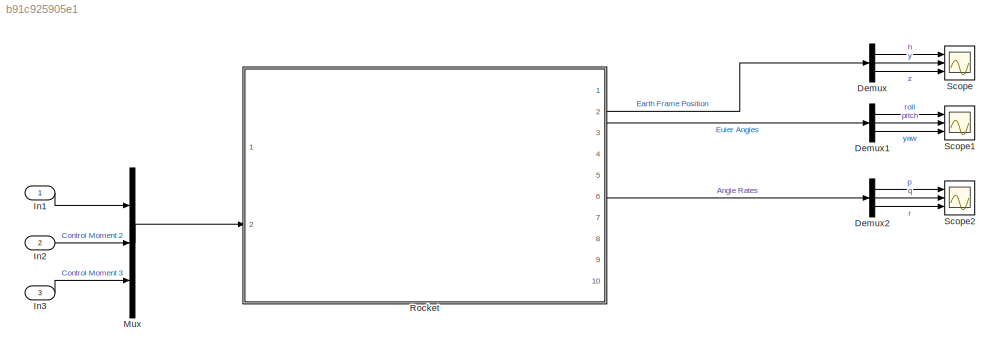
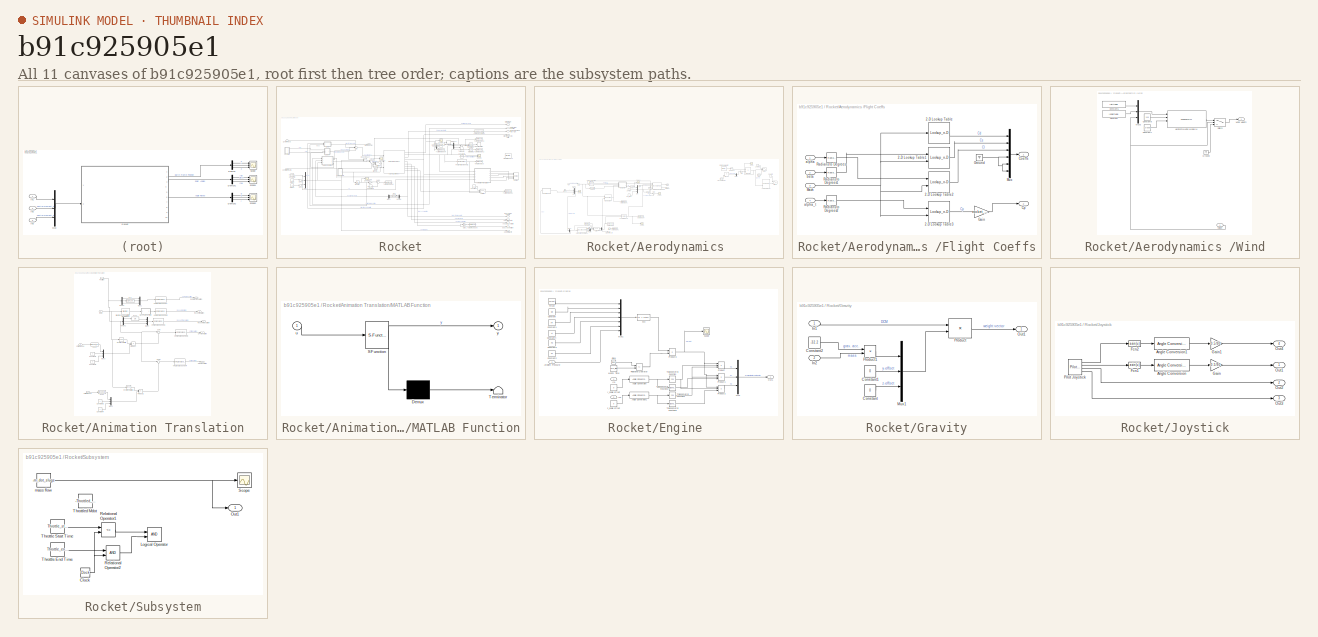
[diagram: thumbnail index - all 11 canvases of the model, root first then tree order]
MODEL slx_b91c925905e1
KIND model
CONFIG AbsTol = auto
CONFIG EnableMultiTasking = off
CONFIG FixedStep = 0.0001
CONFIG MaxStep = auto
CONFIG MinStep = auto
CONFIG RelTol = 1e-7
CONFIG SampleTimeConstraint = Unconstrained
CONFIG Solver = VariableStepAuto
CONFIG SolverName = VariableStepAuto
CONFIG StartTime = 0.0
CONFIG StopTime = 300
BLOCK [Demux] Demux
  DisplayOption = bar
  Outputs = 3
  Ports = [1, 3]
BLOCK [Demux] Demux1
  DisplayOption = bar
  Outputs = 3
  Ports = [1, 3]
BLOCK [Demux] Demux2
  DisplayOption = bar
  Outputs = 3
  Ports = [1, 3]
BLOCK [Inport] In1
  IconDisplay = Port number
BLOCK [Inport] In2
  IconDisplay = Port number
  Port = 2
BLOCK [Inport] In3
  IconDisplay = Port number
  Port = 3
BLOCK [Mux] Mux
  DisplayOption = bar
  Inputs = 3
  Ports = [3, 1]
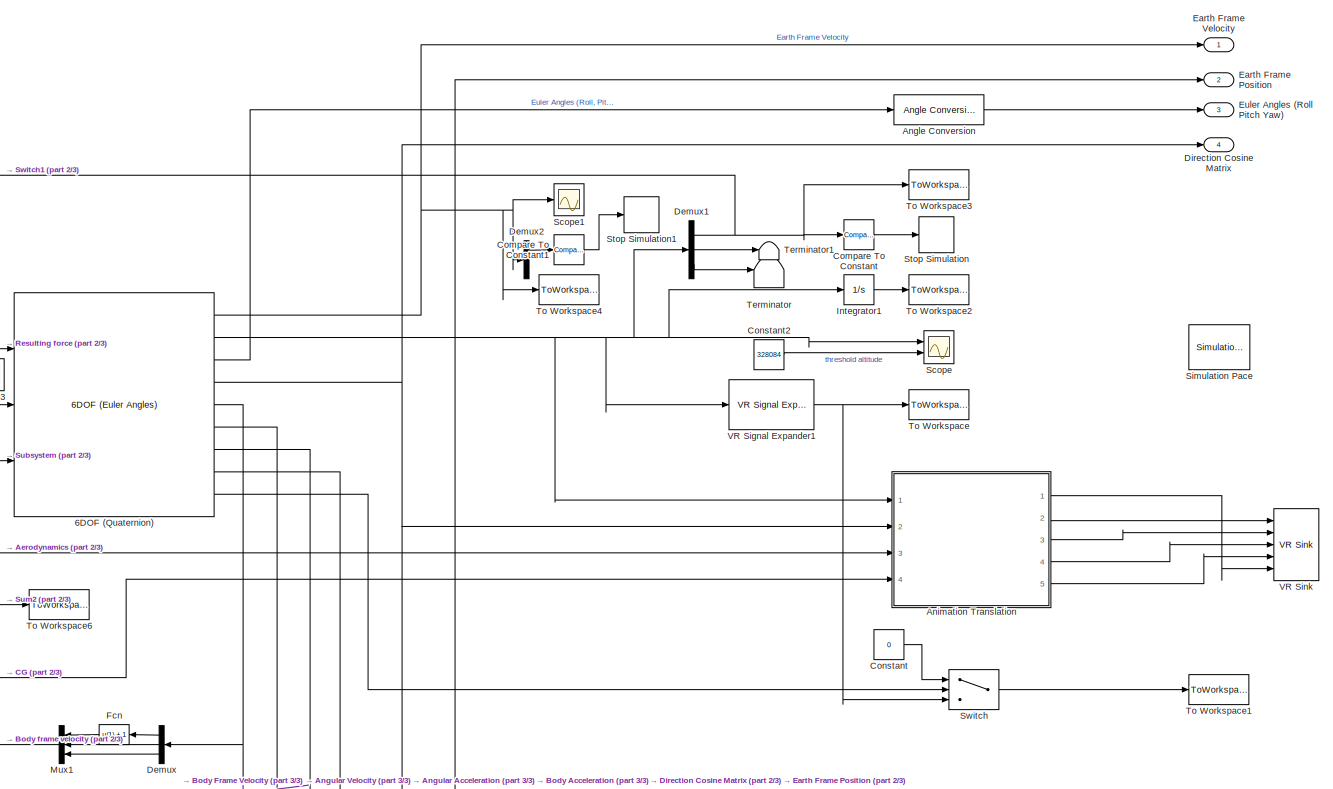
[diagram: Rocket - part 1/3, middle right region]
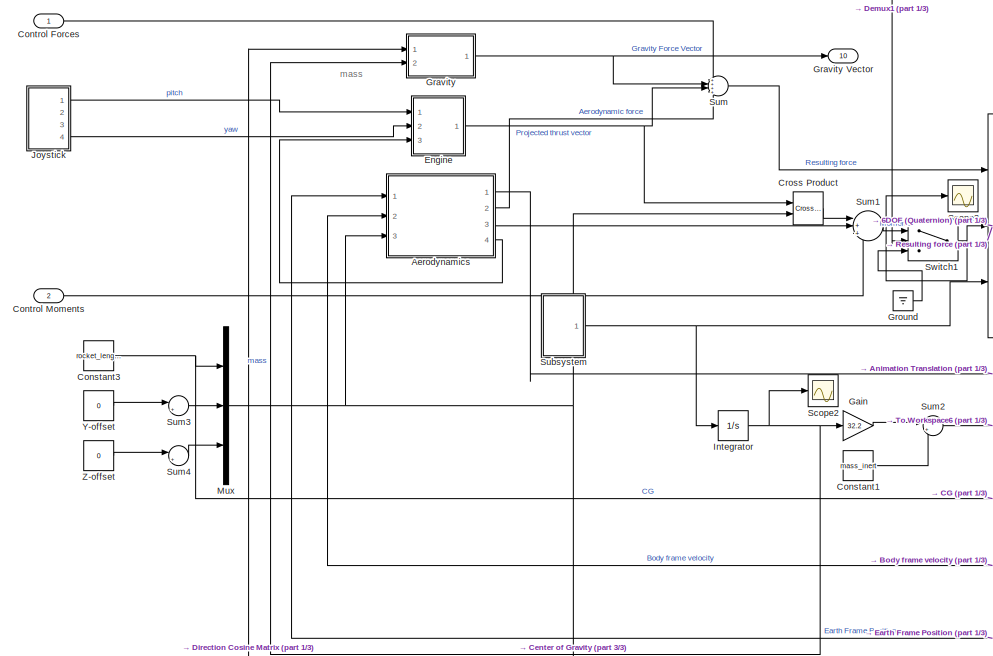
[diagram: Rocket - part 2/3, middle left region]
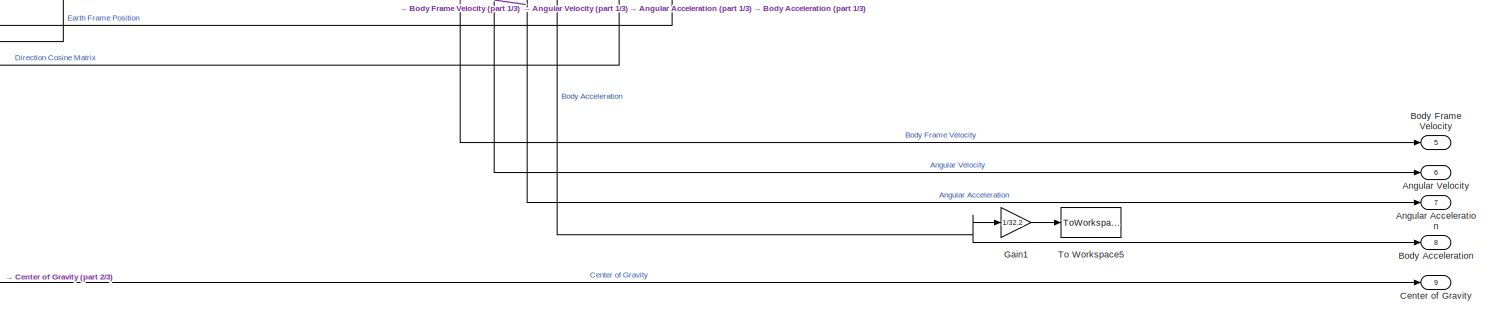
[diagram: Rocket - part 3/3, bottom center region]
BLOCK [SubSystem] Rocket
  Ports = [2, 10]
  RequestExecContextInheritance = off
BLOCK [Reference] Rocket/6DOF (Quaternion)  REF=shared6dof/6DOF (Euler Angles)
  Ports = [3, 9]
  SourceBlock = shared6dof/6DOF (Euler Angles)
  SourceProductBaseCode = AE
  SourceProductName = Aerospace Blockset
  SourceType = 6DOF EoM (Body Axis)
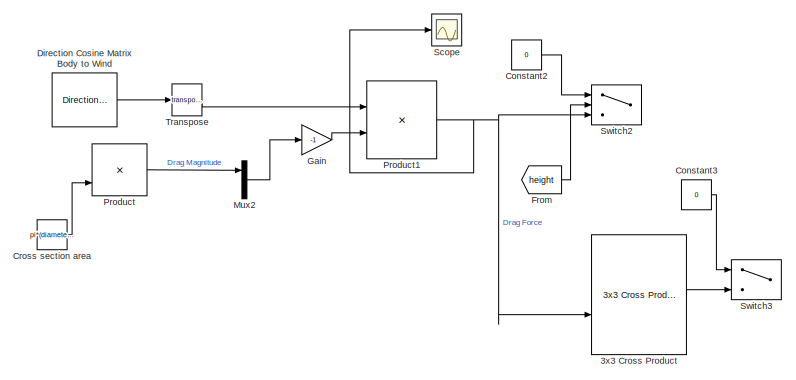
[diagram: Rocket/Aerodynamics  - part 1/3, top right region]
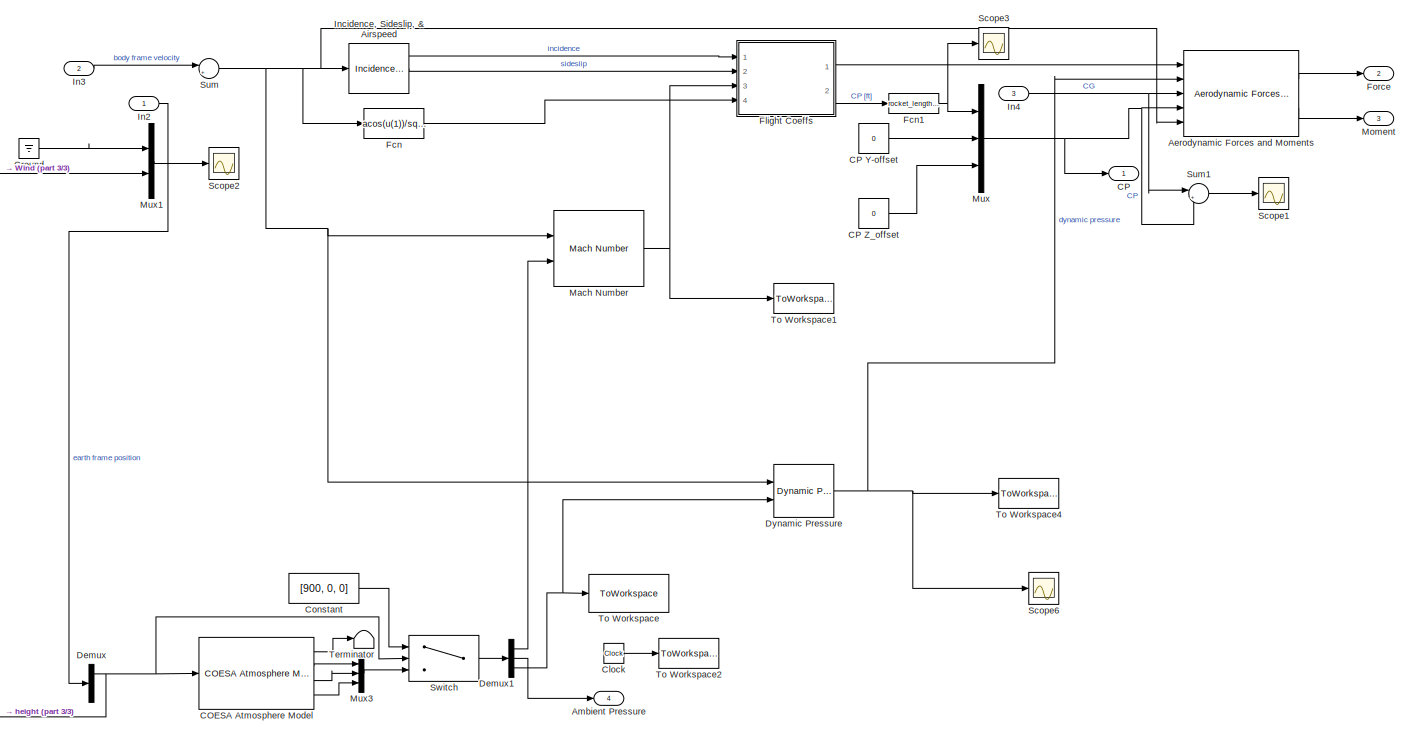
[diagram: Rocket/Aerodynamics  - part 2/3, left side, full height]
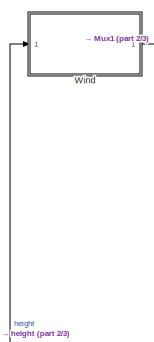
[diagram: Rocket/Aerodynamics  - part 3/3, middle left region]
BLOCK [SubSystem] Rocket/Aerodynamics 
  Ports = [3, 4]
  RequestExecContextInheritance = off
BLOCK [Reference] Rocket/Aerodynamics /3x3 Cross Product  REF=sharedutil/3x3 Cross Product
  Commented = on
  Ports = [2, 1]
  SourceBlock = sharedutil/3x3 Cross Product
  SourceProductBaseCode = AE
  SourceProductName = Aerospace Blockset
  SourceType = CrossProduct
BLOCK [Reference] Rocket/Aerodynamics /Aerodynamic Forces and Moments   REF=aerolibadyn/Aerodynamic
Forces and Moments 
  Ports = [5, 2]
  SourceBlock = aerolibadyn/Aerodynamic\nForces and Moments
  SourceProductBaseCode = AE
  SourceProductName = Aerospace Blockset
  SourceType = Aerodynamic Forces and Moments
BLOCK [Outport] Rocket/Aerodynamics /Ambient Pressure
  IconDisplay = Port number
  Port = 4
BLOCK [Reference] Rocket/Aerodynamics /COESA Atmosphere Model  REF=aerolibatmos2/COESA Atmosphere Model
  Ports = [1, 4]
  SourceBlock = aerolibatmos2/COESA Atmosphere Model
  SourceProductBaseCode = AE
  SourceProductName = Aerospace Blockset
  SourceType = Atmosphere Model
BLOCK [Outport] Rocket/Aerodynamics /CP
  IconDisplay = Port number
BLOCK [Constant] Rocket/Aerodynamics /CP Y-offset 
  Value = 0
BLOCK [Constant] Rocket/Aerodynamics /CP Z_offset 
  Value = 0
BLOCK [Clock] Rocket/Aerodynamics /Clock
BLOCK [Constant] Rocket/Aerodynamics /Constant
  Value = [900, 0, 0]
BLOCK [Constant] Rocket/Aerodynamics /Constant2
  Commented = on
  Value = 0
BLOCK [Constant] Rocket/Aerodynamics /Constant3
  Commented = on
  Value = 0
BLOCK [Constant] Rocket/Aerodynamics /Cross section area
  Commented = on
  Value = pi*(diameter_ft/2)^2
  VectorParams1D = off
BLOCK [Demux] Rocket/Aerodynamics /Demux
  DisplayOption = bar
  Outputs = 3
  Ports = [1, 3]
BLOCK [Demux] Rocket/Aerodynamics /Demux1
  DisplayOption = bar
  Outputs = 3
  Ports = [1, 3]
BLOCK [Reference] Rocket/Aerodynamics /Direction Cosine Matrix Body to Wind  REF=aerolibtransform2/Direction Cosine Matrix
Body to Wind
  Commented = on
  Ports = [1, 1]
  SourceBlock = aerolibtransform2/Direction Cosine Matrix\nBody to Wind
  SourceProductBaseCode = AE
  SourceProductName = Aerospace Blockset
  SourceType = DCM Body to Wind
BLOCK [Reference] Rocket/Aerodynamics /Dynamic Pressure  REF=aerolibasang/Dynamic Pressure
  Ports = [2, 1]
  SourceBlock = aerolibasang/Dynamic Pressure
  SourceProductBaseCode = AE
  SourceProductName = Aerospace Blockset
  SourceType = Dynamic Pressure
BLOCK [Fcn] Rocket/Aerodynamics /Fcn
  Expr = acos(u(1))/sqrt(u(1)^2 + u(2)^2 + u(3)^2)
BLOCK [Fcn] Rocket/Aerodynamics /Fcn1
  Expr = rocket_length - u
BLOCK [SubSystem] Rocket/Aerodynamics /Flight Coeffs
  Ports = [4, 2]
  RequestExecContextInheritance = off
BLOCK [Lookup_n-D] Rocket/Aerodynamics /Flight Coeffs/2-D Lookup Table
  BreakpointsForDimension1 = M_data
  BreakpointsForDimension2 = [1:3]
  InternalRulePriority = Speed
  NumberOfTableDimensions = 1
  Ports = [1, 1]
  RndMeth = Simplest
  Table = Cd_data
BLOCK [Lookup_n-D] Rocket/Aerodynamics /Flight Coeffs/2-D Lookup Table1
  BreakpointsForDimension1 = alpha_data
  BreakpointsForDimension2 = M_data
  InternalRulePriority = Speed
  Ports = [2, 1]
  RndMeth = Simplest
  Table = Cn_data
BLOCK [Lookup_n-D] Rocket/Aerodynamics /Flight Coeffs/2-D Lookup Table2
  BreakpointsForDimension1 = alpha_data
  BreakpointsForDimension2 = M_data
  InternalRulePriority = Speed
  Ports = [2, 1]
  RndMeth = Simplest
  Table = Cn_data
BLOCK [Lookup_n-D] Rocket/Aerodynamics /Flight Coeffs/2-D Lookup Table3
  BreakpointsForDimension1 = alpha_data
  BreakpointsForDimension2 = M_data
  InternalRulePriority = Speed
  Ports = [2, 1]
  RndMeth = Simplest
  Table = Cp_data
BLOCK [Outport] Rocket/Aerodynamics /Flight Coeffs/Coeffs
  IconDisplay = Port number
BLOCK [Outport] Rocket/Aerodynamics /Flight Coeffs/Cp
  IconDisplay = Port number
  Port = 2
BLOCK [Gain] Rocket/Aerodynamics /Flight Coeffs/Gain
  Gain = rocket_length
  OutDataTypeStr = Inherit: Inherit via internal rule
  ParamDataTypeStr = Inherit: Inherit via internal rule
  SaturateOnIntegerOverflow = off
BLOCK [Ground] Rocket/Aerodynamics /Flight Coeffs/Ground
BLOCK [Inport] Rocket/Aerodynamics /Flight Coeffs/Mach
  IconDisplay = Port number
  Port = 3
BLOCK [Mux] Rocket/Aerodynamics /Flight Coeffs/Mux
  DisplayOption = bar
  Inputs = 6
  Ports = [6, 1]
BLOCK [Reference] Rocket/Aerodynamics /Flight Coeffs/Radians to Degrees  REF=simulink_extras/Transformations/Radians
to Degrees
  Ports = [1, 1]
  SourceBlock = simulink_extras/Transformations/Radians\nto Degrees
  SourceProductBaseCode = SL
  SourceProductName = Simulink
  SourceType = RadiansToDegrees
BLOCK [Reference] Rocket/Aerodynamics /Flight Coeffs/Radians to Degrees1  REF=simulink_extras/Transformations/Radians
to Degrees
  Ports = [1, 1]
  SourceBlock = simulink_extras/Transformations/Radians\nto Degrees
  SourceProductBaseCode = SL
  SourceProductName = Simulink
  SourceType = RadiansToDegrees
BLOCK [Reference] Rocket/Aerodynamics /Flight Coeffs/Radians to Degrees2  REF=simulink_extras/Transformations/Radians
to Degrees
  Ports = [1, 1]
  SourceBlock = simulink_extras/Transformations/Radians\nto Degrees
  SourceProductBaseCode = SL
  SourceProductName = Simulink
  SourceType = RadiansToDegrees
BLOCK [Inport] Rocket/Aerodynamics /Flight Coeffs/alpha
  IconDisplay = Port number
BLOCK [Inport] Rocket/Aerodynamics /Flight Coeffs/alpha_t
  IconDisplay = Port number
  Port = 4
BLOCK [Inport] Rocket/Aerodynamics /Flight Coeffs/beta
  IconDisplay = Port number
  Port = 2
BLOCK [Outport] Rocket/Aerodynamics /Force
  IconDisplay = Port number
  Port = 2
BLOCK [From] Rocket/Aerodynamics /From
  Commented = on
  GotoTag = height
BLOCK [Gain] Rocket/Aerodynamics /Gain
  Commented = on
  Gain = -1
  OutDataTypeStr = Inherit: Inherit via internal rule
  ParamDataTypeStr = Inherit: Inherit via internal rule
  SaturateOnIntegerOverflow = off
BLOCK [Ground] Rocket/Aerodynamics /Ground
BLOCK [Inport] Rocket/Aerodynamics /In2
  IconDisplay = Port number
BLOCK [Inport] Rocket/Aerodynamics /In3
  IconDisplay = Port number
  Port = 2
BLOCK [Inport] Rocket/Aerodynamics /In4
  IconDisplay = Port number
  Port = 3
BLOCK [Reference] Rocket/Aerodynamics /Incidence, Sideslip, & Airspeed  REF=aerolibasang/Incidence, Sideslip,
& Airspeed
  Ports = [1, 3]
  SourceBlock = aerolibasang/Incidence, Sideslip,\n& Airspeed
  SourceProductBaseCode = AE
  SourceProductName = Aerospace Blockset
  SourceType = Incidence,Sideslip,&Airspeed
BLOCK [Reference] Rocket/Aerodynamics /Mach Number  REF=aerolibasang/Mach Number
  Ports = [2, 1]
  SourceBlock = aerolibasang/Mach Number
  SourceProductBaseCode = AE
  SourceProductName = Aerospace Blockset
  SourceType = Mach Number
BLOCK [Outport] Rocket/Aerodynamics /Moment
  IconDisplay = Port number
  Port = 3
BLOCK [Mux] Rocket/Aerodynamics /Mux
  DisplayOption = bar
  Inputs = 3
  Ports = [3, 1]
BLOCK [Mux] Rocket/Aerodynamics /Mux1
  DisplayOption = bar
  Inputs = 2
  Ports = [2, 1]
BLOCK [Mux] Rocket/Aerodynamics /Mux2
  Commented = on
  DisplayOption = bar
  Inputs = 3
  Ports = [3, 1]
BLOCK [Mux] Rocket/Aerodynamics /Mux3
  DisplayOption = bar
  Inputs = 3
  Ports = [3, 1]
BLOCK [Product] Rocket/Aerodynamics /Product
  Commented = on
  InputSameDT = off
  Inputs = 3
  OutDataTypeStr = Inherit: Inherit via internal rule
  Ports = [3, 1]
  RndMeth = Floor
  SaturateOnIntegerOverflow = off
BLOCK [Product] Rocket/Aerodynamics /Product1
  Commented = on
  InputSameDT = off
  Multiplication = Matrix(*)
  OutDataTypeStr = Inherit: Inherit via internal rule
  Ports = [2, 1]
  RndMeth = Floor
  SaturateOnIntegerOverflow = off
BLOCK [Scope] Rocket/Aerodynamics /Scope
  Commented = on
  Floating = off
  NumInputPorts = 1
  Ports = [1]
  ScopeSpecificationString = Simulink.scopes.TimeScopeBlockCfg('CurrentConfiguration', extmgr.ConfigurationSet(extmgr.Configuration('Core','General UI',true),extmgr.Configuration('Core','Source UI',true),extmgr.Configuration('Sources','WiredSimulink',true,'DataLoggingVariableName','ScopeData1'),extmgr.Configuration('Visuals','Time Domain',true,'SerializedDisplays',{struct('MinYLimReal','-1015.38387','MaxYLimReal','112.82043',...<+1421ch>
BLOCK [Scope] Rocket/Aerodynamics /Scope1
  Floating = off
  NumInputPorts = 1
  Ports = [1]
  ScopeSpecificationString = Simulink.scopes.TimeScopeBlockCfg('CurrentConfiguration', extmgr.ConfigurationSet(extmgr.Configuration('Core','General UI',true),extmgr.Configuration('Core','Source UI',true),extmgr.Configuration('Sources','WiredSimulink',true,'DataLoggingVariableName','ScopeData2'),extmgr.Configuration('Visuals','Time Domain',true,'SerializedDisplays',{struct('MinYLimReal','-0.83903','MaxYLimReal','7.55129','YLab...<+1409ch>
BLOCK [Scope] Rocket/Aerodynamics /Scope2
  Floating = off
  NumInputPorts = 1
  Ports = [1]
  ScopeSpecificationString = Simulink.scopes.TimeScopeBlockCfg('CurrentConfiguration', extmgr.ConfigurationSet(extmgr.Configuration('Core','General UI',true),extmgr.Configuration('Core','Source UI',true),extmgr.Configuration('Sources','WiredSimulink',true,'DataLoggingVariableName','ScopeData3'),extmgr.Configuration('Visuals','Time Domain',true,'SerializedDisplays',{struct('MinYLimReal','-148.817','MaxYLimReal','200.93647','YL...<+1427ch>
BLOCK [Scope] Rocket/Aerodynamics /Scope3
  Floating = off
  NumInputPorts = 1
  Ports = [1]
  ScopeSpecificationString = Simulink.scopes.TimeScopeBlockCfg('CurrentConfiguration', extmgr.ConfigurationSet(extmgr.Configuration('Core','General UI',true),extmgr.Configuration('Core','Source UI',true),extmgr.Configuration('Sources','WiredSimulink',true,'DataLoggingVariableName','ScopeData5'),extmgr.Configuration('Visuals','Time Domain',true,'SerializedDisplays',{struct('MinYLimReal','5.03992','MaxYLimReal','7.51811','YLabe...<+1387ch>
BLOCK [Scope] Rocket/Aerodynamics /Scope6
  Floating = off
  NumInputPorts = 1
  Ports = [1]
  ScopeSpecificationString = Simulink.scopes.TimeScopeBlockCfg('CurrentConfiguration', extmgr.ConfigurationSet(extmgr.Configuration('Core','General UI',true),extmgr.Configuration('Core','Source UI',true),extmgr.Configuration('Sources','WiredSimulink',true,'DataLoggingVariableName','ScopeData3'),extmgr.Configuration('Visuals','Time Domain',true,'SerializedDisplays',{struct('MinYLimReal','1990.74387','MaxYLimReal','2304.87734',...<+1442ch>
BLOCK [Sum] Rocket/Aerodynamics /Sum
  IconShape = round
  InputSameDT = off
  Inputs = |++
  OutDataTypeStr = Inherit: Inherit via internal rule
  Ports = [2, 1]
  SaturateOnIntegerOverflow = off
BLOCK [Sum] Rocket/Aerodynamics /Sum1
  IconShape = round
  InputSameDT = off
  Inputs = |+-
  OutDataTypeStr = Inherit: Inherit via internal rule
  Ports = [2, 1]
  SaturateOnIntegerOverflow = off
BLOCK [Switch] Rocket/Aerodynamics /Switch
  Criteria = u2 > Threshold
  InputSameDT = off
  SaturateOnIntegerOverflow = off
  Threshold = 275590
BLOCK [Switch] Rocket/Aerodynamics /Switch2
  Commented = on
  Criteria = u2 > Threshold
  InputSameDT = off
  SaturateOnIntegerOverflow = off
  Threshold = 278380
BLOCK [Switch] Rocket/Aerodynamics /Switch3
  Commented = on
  Criteria = u2 > Threshold
  InputSameDT = off
  SaturateOnIntegerOverflow = off
  Threshold = 278380
BLOCK [Terminator] Rocket/Aerodynamics /Terminator
BLOCK [ToWorkspace] Rocket/Aerodynamics /To Workspace
  FixptAsFi = on
  MaxDataPoints = inf
  Ports = [1]
  SampleTime = -1
  Save2DSignal = 3-D array (concatenate along third dimension)
  VariableName = density
BLOCK [ToWorkspace] Rocket/Aerodynamics /To Workspace1
  FixptAsFi = on
  MaxDataPoints = inf
  Ports = [1]
  SampleTime = -1
  Save2DSignal = 3-D array (concatenate along third dimension)
  VariableName = Mach
BLOCK [ToWorkspace] Rocket/Aerodynamics /To Workspace2
  FixptAsFi = on
  MaxDataPoints = inf
  Ports = [1]
  SampleTime = -1
  Save2DSignal = 3-D array (concatenate along third dimension)
  VariableName = time
BLOCK [ToWorkspace] Rocket/Aerodynamics /To Workspace4
  FixptAsFi = on
  MaxDataPoints = inf
  Ports = [1]
  SampleTime = -1
  Save2DSignal = 3-D array (concatenate along third dimension)
  SaveFormat = Timeseries
  VariableName = q
BLOCK [Math] Rocket/Aerodynamics /Transpose
  Commented = on
  Operator = transpose
  Ports = [1, 1]
BLOCK [SubSystem] Rocket/Aerodynamics /Wind
  Ports = [1, 1]
  RequestExecContextInheritance = off
BLOCK [Constant] Rocket/Aerodynamics /Wind/Constant
  Value = longitude
BLOCK [Constant] Rocket/Aerodynamics /Wind/Constant5
  Value = latitude
BLOCK [Constant] Rocket/Aerodynamics /Wind/Constant6
  Value = 119
BLOCK [Constant] Rocket/Aerodynamics /Wind/Constant7
  Value = 12*3600
BLOCK [Ground] Rocket/Aerodynamics /Wind/Ground
BLOCK [WindHWM14] Rocket/Aerodynamics /Wind/Horizontal Wind Model 14
  Ports = [4, 1]
  model = Total
  units = English (Velocity in ft/s)
BLOCK [Mux] Rocket/Aerodynamics /Wind/Mux3
  DisplayOption = bar
  Inputs = 3
  Ports = [3, 1]
BLOCK [Switch] Rocket/Aerodynamics /Wind/Switch
  Criteria = u2 > Threshold
  InputSameDT = off
  SaturateOnIntegerOverflow = off
  Threshold = 75
BLOCK [Outport] Rocket/Aerodynamics /Wind/Wind Velocity
  IconDisplay = Port number
BLOCK [Inport] Rocket/Aerodynamics /Wind/height
  IconDisplay = Port number
BLOCK [Reference] Rocket/Angle Conversion  REF=aerolibconvert2/Angle Conversion
  Ports = [1, 1]
  SourceBlock = aerolibconvert2/Angle Conversion
  SourceProductBaseCode = AE
  SourceProductName = Aerospace Blockset
  SourceType = Angle Conversion
BLOCK [Outport] Rocket/Angular Acceleration
  IconDisplay = Port number
  Port = 7
BLOCK [Outport] Rocket/Angular Velocity
  IconDisplay = Port number
  Port = 6
BLOCK [SubSystem] Rocket/Animation Translation
  Commented = on
  Ports = [4, 5]
  RequestExecContextInheritance = off
BLOCK [Outport] Rocket/Animation Translation/CG Translation
  IconDisplay = Port number
  Port = 5
BLOCK [Inport] Rocket/Animation Translation/CG from base
  IconDisplay = Port number
  Port = 4
BLOCK [Outport] Rocket/Animation Translation/CP Translation
  IconDisplay = Port number
  Port = 4
BLOCK [Inport] Rocket/Animation Translation/CP from base
  IconDisplay = Port number
  Port = 3
BLOCK [Outport] Rocket/Animation Translation/Camera Translation
  IconDisplay = Port number
BLOCK [Constant] Rocket/Animation Translation/Constant1
  Value = 0
BLOCK [Constant] Rocket/Animation Translation/Constant2
  Value = 0
BLOCK [Constant] Rocket/Animation Translation/Constant3
  Value = 0
BLOCK [Constant] Rocket/Animation Translation/Constant4
  Value = 0
BLOCK [Inport] Rocket/Animation Translation/DCM
  IconDisplay = Port number
  Port = 2
BLOCK [Demux] Rocket/Animation Translation/Demux
  DisplayOption = bar
  Outputs = 3
  Ports = [1, 3]
BLOCK [Demux] Rocket/Animation Translation/Demux1
  DisplayOption = bar
  Outputs = 3
  Ports = [1, 3]
BLOCK [Reference] Rocket/Animation Translation/Direction Cosine Matrix to Quaternions  REF=sharedtransform/Direction Cosine Matrix 
to Quaternions
  Ports = [1, 1]
  SourceBlock = sharedtransform/Direction Cosine Matrix \nto Quaternions
  SourceProductBaseCode = AE
  SourceProductName = Aerospace Blockset
  SourceType = DCM2Quaternion
BLOCK [Fcn] Rocket/Animation Translation/Fcn
  Expr = u(1) + 100
BLOCK [Fcn] Rocket/Animation Translation/Fcn1
  Expr = u - rocket_length/2
BLOCK [Fcn] Rocket/Animation Translation/Fcn2
  Expr = u - rocket_length/2
BLOCK [Fcn] Rocket/Animation Translation/Fcn3
  Expr = u - 5
BLOCK [Reference] Rocket/Animation Translation/Invert 3x3 Matrix  REF=aerolibutil/Invert 
3x3 Matrix
  Ports = [1, 1]
  SourceBlock = aerolibutil/Invert \n3x3 Matrix
  SourceProductBaseCode = AE
  SourceProductName = Aerospace Blockset
  SourceType = Invert 3x3 Matrix
BLOCK [Reference] Rocket/Animation Translation/Invert 3x3 Matrix1  REF=aerolibutil/Invert 
3x3 Matrix
  Ports = [1, 1]
  SourceBlock = aerolibutil/Invert \n3x3 Matrix
  SourceProductBaseCode = AE
  SourceProductName = Aerospace Blockset
  SourceType = Invert 3x3 Matrix
BLOCK [SubSystem] Rocket/Animation Translation/MATLAB Function
  ErrorFcn = Stateflow.Translate.translate
  PermitHierarchicalResolution = ExplicitOnly
  Ports = [1, 1]
  RequestExecContextInheritance = off
  SFBlockType = MATLAB Function
  TreatAsAtomicUnit = on
BLOCK [Demux] Rocket/Animation Translation/MATLAB Function/ Demux 
  Outputs = 1
  Ports = [1, 1]
BLOCK [S-Function] Rocket/Animation Translation/MATLAB Function/ SFunction 
  EnableBusSupport = on
  FunctionName = sf_sfun
  PortCounts = [1 2]
  Ports = [1, 2]
  SFcnIsStateOwnerBlock = off
  SFunctionDeploymentMode = off
  Tag = Stateflow S-Function Purdue_Sim 2
BLOCK [Terminator] Rocket/Animation Translation/MATLAB Function/ Terminator 
BLOCK [Inport] Rocket/Animation Translation/MATLAB Function/u
  IconDisplay = Port number
BLOCK [Outport] Rocket/Animation Translation/MATLAB Function/y
  IconDisplay = Port number
BLOCK [Mux] Rocket/Animation Translation/Mux1
  DisplayOption = bar
  Inputs = 3
  Ports = [3, 1]
BLOCK [Mux] Rocket/Animation Translation/Mux2
  DisplayOption = bar
  Inputs = 3
  Ports = [3, 1]
BLOCK [Mux] Rocket/Animation Translation/Mux3
  DisplayOption = bar
  Inputs = 3
  Ports = [3, 1]
BLOCK [Mux] Rocket/Animation Translation/Mux4
  DisplayOption = bar
  Inputs = 3
  Ports = [3, 1]
BLOCK [Inport] Rocket/Animation Translation/Position
  IconDisplay = Port number
BLOCK [Product] Rocket/Animation Translation/Product
  InputSameDT = off
  Multiplication = Matrix(*)
  OutDataTypeStr = Inherit: Inherit via internal rule
  Ports = [2, 1]
  RndMeth = Floor
  SaturateOnIntegerOverflow = off
BLOCK [Product] Rocket/Animation Translation/Product1
  InputSameDT = off
  Multiplication = Matrix(*)
  OutDataTypeStr = Inherit: Inherit via internal rule
  Ports = [2, 1]
  RndMeth = Floor
  SaturateOnIntegerOverflow = off
BLOCK [Outport] Rocket/Animation Translation/Rocket Rotation
  IconDisplay = Port number
  Port = 2
BLOCK [Outport] Rocket/Animation Translation/Rocket Translation
  IconDisplay = Port number
  Port = 3
BLOCK [Sum] Rocket/Animation Translation/Sum
  IconShape = round
  InputSameDT = off
  Inputs = |++
  OutDataTypeStr = Inherit: Inherit via internal rule
  Ports = [2, 1]
  SaturateOnIntegerOverflow = off
BLOCK [Sum] Rocket/Animation Translation/Sum1
  IconShape = round
  InputSameDT = off
  Inputs = |++
  OutDataTypeStr = Inherit: Inherit via internal rule
  Ports = [2, 1]
  SaturateOnIntegerOverflow = off
BLOCK [Reference] Rocket/Animation Translation/VR Signal Expander  REF=vrlib/VR Signal Expander
  Ports = [1, 1]
  SourceBlock = vrlib/VR Signal Expander
  SourceProductBaseCode = VR
  SourceProductName = Simulink 3D Animation
  SourceType = VR Signal Expander
BLOCK [Reference] Rocket/Animation Translation/VR Signal Expander1  REF=vrlib/VR Signal Expander
  Ports = [1, 1]
  SourceBlock = vrlib/VR Signal Expander
  SourceProductBaseCode = VR
  SourceProductName = Simulink 3D Animation
  SourceType = VR Signal Expander
BLOCK [Reference] Rocket/Animation Translation/VR Signal Expander2  REF=vrlib/VR Signal Expander
  Ports = [1, 1]
  SourceBlock = vrlib/VR Signal Expander
  SourceProductBaseCode = VR
  SourceProductName = Simulink 3D Animation
  SourceType = VR Signal Expander
BLOCK [Reference] Rocket/Animation Translation/VR Signal Expander3  REF=vrlib/VR Signal Expander
  Ports = [1, 1]
  SourceBlock = vrlib/VR Signal Expander
  SourceProductBaseCode = VR
  SourceProductName = Simulink 3D Animation
  SourceType = VR Signal Expander
BLOCK [Reference] Rocket/Animation Translation/VR Signal Expander4  REF=vrlib/VR Signal Expander
  Ports = [1, 1]
  SourceBlock = vrlib/VR Signal Expander
  SourceProductBaseCode = VR
  SourceProductName = Simulink 3D Animation
  SourceType = VR Signal Expander
BLOCK [Outport] Rocket/Body Acceleration
  IconDisplay = Port number
  Port = 8
BLOCK [Outport] Rocket/Body Frame Velocity
  IconDisplay = Port number
  Port = 5
BLOCK [Outport] Rocket/Center of Gravity
  IconDisplay = Port number
  Port = 9
BLOCK [Reference] Rocket/Compare To Constant  REF=simulink/Logic and Bit
Operations/Compare
To Constant
  Ports = [1, 1]
  SourceBlock = simulink/Logic and Bit\nOperations/Compare\nTo Constant
  SourceProductBaseCode = SL
  SourceProductName = Simulink
  SourceType = Compare To Constant
BLOCK [Reference] Rocket/Compare To Constant1  REF=simulink/Logic and Bit
Operations/Compare
To Constant
  Ports = [1, 1]
  SourceBlock = simulink/Logic and Bit\nOperations/Compare\nTo Constant
  SourceProductBaseCode = SL
  SourceProductName = Simulink
  SourceType = Compare To Constant
BLOCK [Constant] Rocket/Constant
  Value = 0
BLOCK [Constant] Rocket/Constant1
  Value = mass_inert
BLOCK [Constant] Rocket/Constant2
  Value = 328084
BLOCK [Constant] Rocket/Constant3
  Value = rocket_length/2
BLOCK [Inport] Rocket/Control Forces
  IconDisplay = Port number
BLOCK [Inport] Rocket/Control Moments
  IconDisplay = Port number
  Port = 2
BLOCK [Reference] Rocket/Cross Product  REF=vrlib/Utilities/Cross Product
  Ports = [2, 1]
  SourceBlock = vrlib/Utilities/Cross Product
  SourceProductBaseCode = VR
  SourceProductName = Simulink 3D Animation
  SourceType = Cross Product
BLOCK [Demux] Rocket/Demux
  DisplayOption = bar
  Outputs = 3
  Ports = [1, 3]
BLOCK [Demux] Rocket/Demux1
  DisplayOption = bar
  Outputs = 3
  Ports = [1, 3]
BLOCK [Demux] Rocket/Demux2
  DisplayOption = bar
  Outputs = 3
  Ports = [1, 3]
BLOCK [Outport] Rocket/Direction Cosine Matrix
  IconDisplay = Port number
  Port = 4
BLOCK [Outport] Rocket/Earth Frame Position
  IconDisplay = Port number
  Port = 2
BLOCK [Outport] Rocket/Earth Frame Velocity
  IconDisplay = Port number
BLOCK [SubSystem] Rocket/Engine 
  Ports = [3, 1]
  RequestExecContextInheritance = off
BLOCK [Inport] Rocket/Engine /Ambient Pressure
  IconDisplay = Port number
  Port = 3
BLOCK [Reference] Rocket/Engine /Angle Conversion  REF=aerolibconvert2/Angle Conversion
  Ports = [1, 1]
  SourceBlock = aerolibconvert2/Angle Conversion
  SourceProductBaseCode = AE
  SourceProductName = Aerospace Blockset
  SourceType = Angle Conversion
BLOCK [Reference] Rocket/Engine /Angle Conversion1  REF=aerolibconvert2/Angle Conversion
  Ports = [1, 1]
  SourceBlock = aerolibconvert2/Angle Conversion
  SourceProductBaseCode = AE
  SourceProductName = Aerospace Blockset
  SourceType = Angle Conversion
BLOCK [Clock] Rocket/Engine /Clock
BLOCK [Constant] Rocket/Engine /Constant
  Value = De
BLOCK [Constant] Rocket/Engine /Constant1
  Value = AR
BLOCK [Constant] Rocket/Engine /Constant2
  Value = Pc
BLOCK [Constant] Rocket/Engine /Constant3
  Value = Pe
BLOCK [Constant] Rocket/Engine /Constant4
  Value = At
BLOCK [Fcn] Rocket/Engine /Fcn
  Expr = u(1) + (u(6)*u(4)*u(3)*((u(5) - u(7))/u(6)))
BLOCK [Inport] Rocket/Engine /In1
  IconDisplay = Port number
BLOCK [Inport] Rocket/Engine /In2
  IconDisplay = Port number
  Port = 2
BLOCK [Constant] Rocket/Engine /MECO Time
  Value = burn_time
BLOCK [Mux] Rocket/Engine /Mux
  DisplayOption = bar
  Inputs = 3
  Ports = [3, 1]
BLOCK [Mux] Rocket/Engine /Mux1
  DisplayOption = bar
  Inputs = 7
  Ports = [7, 1]
BLOCK [Outport] Rocket/Engine /Out1
  IconDisplay = Port number
BLOCK [Product] Rocket/Engine /Product
  InputSameDT = off
  Inputs = 3
  OutDataTypeStr = Inherit: Inherit via internal rule
  Ports = [3, 1]
  RndMeth = Floor
  SaturateOnIntegerOverflow = off
BLOCK [Product] Rocket/Engine /Product1
  InputSameDT = off
  Inputs = 3
  OutDataTypeStr = Inherit: Inherit via internal rule
  Ports = [3, 1]
  RndMeth = Floor
  SaturateOnIntegerOverflow = off
BLOCK [Product] Rocket/Engine /Product2
  InputSameDT = off
  Inputs = 3
  OutDataTypeStr = Inherit: Inherit via internal rule
  Ports = [3, 1]
  RndMeth = Floor
  SaturateOnIntegerOverflow = off
BLOCK [Product] Rocket/Engine /Product3
  InputSameDT = off
  OutDataTypeStr = Inherit: Inherit via internal rule
  Ports = [2, 1]
  RndMeth = Floor
  SaturateOnIntegerOverflow = off
BLOCK [RelationalOperator] Rocket/Engine /Relational Operator
  InputSameDT = off
  Operator = <=
  OutDataTypeStr = boolean
  Ports = [2, 1]
  RndMeth = Simplest
BLOCK [Scope] Rocket/Engine /Scope
  Floating = off
  NumInputPorts = 1
  Ports = [1]
  ScopeSpecificationString = Simulink.scopes.TimeScopeBlockCfg('CurrentConfiguration', extmgr.ConfigurationSet(extmgr.Configuration('Core','General UI',true),extmgr.Configuration('Core','Source UI',true),extmgr.Configuration('Sources','WiredSimulink',true,'DataLoggingVariableName','ScopeData1'),extmgr.Configuration('Visuals','Time Domain',true,'SerializedDisplays',{struct('MinYLimReal','-648.4014','MaxYLimReal','5835.61256','...<+1407ch>
BLOCK [Constant] Rocket/Engine /Thrust
  Value = Thrust
BLOCK [Trigonometry] Rocket/Engine /Trigonometric Function
  Operator = cos
  Ports = [1, 1]
BLOCK [Trigonometry] Rocket/Engine /Trigonometric Function1
  Ports = [1, 1]
BLOCK [Trigonometry] Rocket/Engine /Trigonometric Function2
  Operator = cos
  Ports = [1, 1]
BLOCK [Trigonometry] Rocket/Engine /Trigonometric Function3
  Ports = [1, 1]
BLOCK [Constant] Rocket/Engine /y_angle offset
  Value = 0
BLOCK [Constant] Rocket/Engine /z_angle offset
  Value = 0
BLOCK [Outport] Rocket/Euler Angles (Roll Pitch Yaw)
  IconDisplay = Port number
  Port = 3
BLOCK [Fcn] Rocket/Fcn
  Expr = u(1) + 1
BLOCK [Gain] Rocket/Gain
  Gain = 32.2
  OutDataTypeStr = Inherit: Inherit via internal rule
  ParamDataTypeStr = Inherit: Inherit via internal rule
  SaturateOnIntegerOverflow = off
BLOCK [Gain] Rocket/Gain1
  Gain = 1/32.2
  OutDataTypeStr = Inherit: Inherit via internal rule
  ParamDataTypeStr = Inherit: Inherit via internal rule
  SaturateOnIntegerOverflow = off
BLOCK [SubSystem] Rocket/Gravity
  Ports = [2, 1]
  RequestExecContextInheritance = off
BLOCK [Outport] Rocket/Gravity Vector
  IconDisplay = Port number
  Port = 10
BLOCK [Constant] Rocket/Gravity/Constant
  Value = 0
BLOCK [Constant] Rocket/Gravity/Constant1
  Value = 0
BLOCK [Constant] Rocket/Gravity/Constant2
  Value = -32.2
BLOCK [Inport] Rocket/Gravity/In1
  IconDisplay = Port number
BLOCK [Inport] Rocket/Gravity/In2
  IconDisplay = Port number
  Port = 2
BLOCK [Mux] Rocket/Gravity/Mux1
  DisplayOption = bar
  Inputs = 3
  Ports = [3, 1]
BLOCK [Outport] Rocket/Gravity/Out1
  IconDisplay = Port number
BLOCK [Product] Rocket/Gravity/Product
  InputSameDT = off
  Multiplication = Matrix(*)
  OutDataTypeStr = Inherit: Inherit via internal rule
  Ports = [2, 1]
  RndMeth = Floor
  SaturateOnIntegerOverflow = off
BLOCK [Product] Rocket/Gravity/Product1
  InputSameDT = off
  OutDataTypeStr = Inherit: Inherit via internal rule
  Ports = [2, 1]
  RndMeth = Floor
  SaturateOnIntegerOverflow = off
BLOCK [Ground] Rocket/Ground
BLOCK [Integrator] Rocket/Integrator
  InitialCondition = wet_mass_slugs
  LimitOutput = on
  LowerSaturationLimit = dry_mass_slugs
  Ports = [1, 1]
BLOCK [Integrator] Rocket/Integrator1
  Ports = [1, 1]
BLOCK [SubSystem] Rocket/Joystick
  Commented = on
  Ports = [0, 4]
  RequestExecContextInheritance = off
BLOCK [Reference] Rocket/Joystick/Angle Conversion  REF=aerolibconvert2/Angle Conversion
  Ports = [1, 1]
  SourceBlock = aerolibconvert2/Angle Conversion
  SourceProductBaseCode = AE
  SourceProductName = Aerospace Blockset
  SourceType = Angle Conversion
BLOCK [Reference] Rocket/Joystick/Angle Conversion1  REF=aerolibconvert2/Angle Conversion
  Ports = [1, 1]
  SourceBlock = aerolibconvert2/Angle Conversion
  SourceProductBaseCode = AE
  SourceProductName = Aerospace Blockset
  SourceType = Angle Conversion
BLOCK [Fcn] Rocket/Joystick/Fcn1
  Expr = asin(u)
BLOCK [Fcn] Rocket/Joystick/Fcn2
  Expr = asin(u)
BLOCK [Gain] Rocket/Joystick/Gain
  Gain = -0.5/90
  OutDataTypeStr = Inherit: Inherit via internal rule
  ParamDataTypeStr = Inherit: Inherit via internal rule
  SaturateOnIntegerOverflow = off
BLOCK [Gain] Rocket/Joystick/Gain1
  Gain = -0.5/90
  OutDataTypeStr = Inherit: Inherit via internal rule
  ParamDataTypeStr = Inherit: Inherit via internal rule
  SaturateOnIntegerOverflow = off
BLOCK [Outport] Rocket/Joystick/Out1
  IconDisplay = Port number
BLOCK [Outport] Rocket/Joystick/Out2
  IconDisplay = Port number
  Port = 2
BLOCK [Outport] Rocket/Joystick/Out3
  IconDisplay = Port number
  Port = 3
BLOCK [Outport] Rocket/Joystick/Out4
  IconDisplay = Port number
  Port = 4
BLOCK [Reference] Rocket/Joystick/Pilot Joystick  REF=aerolibanimutils/Pilot Joystick
  Ports = [0, 4]
  SourceBlock = aerolibanimutils/Pilot Joystick
  SourceProductBaseCode = AE
  SourceProductName = Aerospace Blockset
  SourceType = PilotJoystick
BLOCK [Mux] Rocket/Mux
  DisplayOption = bar
  Inputs = 3
  Ports = [3, 1]
BLOCK [Mux] Rocket/Mux1
  DisplayOption = bar
  Inputs = 3
  Ports = [3, 1]
BLOCK [Scope] Rocket/Scope
  Floating = off
  NumInputPorts = 2
  Ports = [2]
  ScopeSpecificationString = Simulink.scopes.TimeScopeBlockCfg('CurrentConfiguration', extmgr.ConfigurationSet(extmgr.Configuration('Core','General UI',true),extmgr.Configuration('Core','Source UI',true),extmgr.Configuration('Sources','WiredSimulink',true),extmgr.Configuration('Visuals','Time Domain',true,'SerializedDisplays',{struct('MinYLimReal','-85258.44433','MaxYLimReal','767325.99901','YLabelReal','','MinYLimMag','   0....<+1576ch>
BLOCK [Scope] Rocket/Scope1
  Floating = off
  NumInputPorts = 1
  Ports = [1]
  ScopeSpecificationString = Simulink.scopes.TimeScopeBlockCfg('CurrentConfiguration', extmgr.ConfigurationSet(extmgr.Configuration('Core','General UI',true),extmgr.Configuration('Core','Source UI',true),extmgr.Configuration('Sources','WiredSimulink',true,'DataLoggingVariableName','ScopeData1'),extmgr.Configuration('Visuals','Time Domain',true,'SerializedDisplays',{struct('MinYLimReal','-442.69031','MaxYLimReal','407.10999','...<+1513ch>
BLOCK [Scope] Rocket/Scope2
  Floating = off
  NumInputPorts = 1
  Ports = [1]
  ScopeSpecificationString = Simulink.scopes.TimeScopeBlockCfg('CurrentConfiguration', extmgr.ConfigurationSet(extmgr.Configuration('Core','General UI',true),extmgr.Configuration('Core','Source UI',true),extmgr.Configuration('Sources','WiredSimulink',true,'DataLoggingVariableName','ScopeData2'),extmgr.Configuration('Visuals','Time Domain',true,'SerializedDisplays',{struct('MinYLimReal','12.8563','MaxYLimReal','48.40313','YLab...<+1365ch>
BLOCK [Scope] Rocket/Scope3
  Floating = off
  NumInputPorts = 1
  Ports = [1]
  ScopeSpecificationString = Simulink.scopes.TimeScopeBlockCfg('CurrentConfiguration', extmgr.ConfigurationSet(extmgr.Configuration('Core','General UI',true),extmgr.Configuration('Core','Source UI',true),extmgr.Configuration('Sources','WiredSimulink',true,'DataLoggingVariableName','ScopeData4'),extmgr.Configuration('Visuals','Time Domain',true,'SerializedDisplays',{struct('MinYLimReal','-1.00000','MaxYLimReal','1.00000','YLab...<+1418ch>
BLOCK [Reference] Rocket/Simulation Pace  REF=aerolibanimutils/Simulation Pace
  AttributesFormatString = %<SleepMode>\n%<SimulationPace> sec/sec
  Commented = on
  Ports = []
  SourceBlock = aerolibanimutils/Simulation Pace
  SourceProductBaseCode = AE
  SourceProductName = Aerospace Blockset
  SourceType = Simulation Pace
BLOCK [Stop] Rocket/Stop Simulation
BLOCK [Stop] Rocket/Stop Simulation1
BLOCK [SubSystem] Rocket/Subsystem
  Ports = [0, 1]
  RequestExecContextInheritance = off
BLOCK [Clock] Rocket/Subsystem/Clock
BLOCK [Logic] Rocket/Subsystem/Logical Operator
  AllPortsSameDT = off
  OutDataTypeStr = boolean
  Ports = [2, 1]
BLOCK [Outport] Rocket/Subsystem/Out1
  IconDisplay = Port number
BLOCK [RelationalOperator] Rocket/Subsystem/Relational Operator1
  InputSameDT = off
  Operator = <=
  OutDataTypeStr = boolean
  Ports = [2, 1]
  RndMeth = Simplest
BLOCK [RelationalOperator] Rocket/Subsystem/Relational Operator2
  InputSameDT = off
  OutDataTypeStr = boolean
  Ports = [2, 1]
  RndMeth = Simplest
BLOCK [Scope] Rocket/Subsystem/Scope
  Floating = off
  NumInputPorts = 1
  Ports = [1]
  ScopeSpecificationString = Simulink.scopes.TimeScopeBlockCfg('CurrentConfiguration', extmgr.ConfigurationSet(extmgr.Configuration('Core','General UI',true),extmgr.Configuration('Core','Source UI',true),extmgr.Configuration('Sources','WiredSimulink',true,'DataLoggingVariableName','ScopeData2'),extmgr.Configuration('Visuals','Time Domain',true,'SerializedDisplays',{struct('MinYLimReal','-0.6823','MaxYLimReal','-0.4823','YLabe...<+1361ch>
BLOCK [Constant] Rocket/Subsystem/Throttle End Time
  Value = Throttle_end_time
BLOCK [Constant] Rocket/Subsystem/Throttle Start Time
  Value = Throttle_start_time
BLOCK [Constant] Rocket/Subsystem/Throttled Mdot
  Value = -Throttled_m_dot
BLOCK [Constant] Rocket/Subsystem/mass flow
  Value = -m_dot_slugs
BLOCK [Sum] Rocket/Sum
  IconShape = round
  InputSameDT = off
  Inputs = ++++
  OutDataTypeStr = Inherit: Inherit via internal rule
  Ports = [4, 1]
  SaturateOnIntegerOverflow = off
BLOCK [Sum] Rocket/Sum1
  IconShape = round
  InputSameDT = off
  Inputs = |+++
  OutDataTypeStr = Inherit: Inherit via internal rule
  Ports = [3, 1]
  SaturateOnIntegerOverflow = off
BLOCK [Sum] Rocket/Sum2
  IconShape = round
  InputSameDT = off
  Inputs = |+-
  OutDataTypeStr = Inherit: Inherit via internal rule
  Ports = [2, 1]
  SaturateOnIntegerOverflow = off
BLOCK [Sum] Rocket/Sum3
  IconShape = round
  InputSameDT = off
  Inputs = |++
  OutDataTypeStr = Inherit: Inherit via internal rule
  Ports = [2, 1]
  SaturateOnIntegerOverflow = off
BLOCK [Sum] Rocket/Sum4
  IconShape = round
  InputSameDT = off
  Inputs = |++
  OutDataTypeStr = Inherit: Inherit via internal rule
  Ports = [2, 1]
  SaturateOnIntegerOverflow = off
BLOCK [Switch] Rocket/Switch
  InputSameDT = off
  SaturateOnIntegerOverflow = off
BLOCK [Switch] Rocket/Switch1
  Criteria = u2 > Threshold
  InputSameDT = off
  SaturateOnIntegerOverflow = off
  Threshold = 75
BLOCK [Terminator] Rocket/Terminator
BLOCK [Terminator] Rocket/Terminator1
BLOCK [ToWorkspace] Rocket/To Workspace
  FixptAsFi = on
  MaxDataPoints = inf
  Ports = [1]
  SampleTime = -1
  Save2DSignal = 3-D array (concatenate along third dimension)
  VariableName = trajectory
BLOCK [ToWorkspace] Rocket/To Workspace1
  FixptAsFi = on
  MaxDataPoints = inf
  Ports = [1]
  SampleTime = -1
  Save2DSignal = 3-D array (concatenate along third dimension)
  VariableName = drift
BLOCK [ToWorkspace] Rocket/To Workspace2
  FixptAsFi = on
  MaxDataPoints = inf
  Ports = [1]
  SampleTime = -1
  Save2DSignal = 3-D array (concatenate along third dimension)
  VariableName = integral
BLOCK [ToWorkspace] Rocket/To Workspace3
  FixptAsFi = on
  MaxDataPoints = inf
  Ports = [1]
  SampleTime = -1
  Save2DSignal = 3-D array (concatenate along third dimension)
  VariableName = altitude
BLOCK [ToWorkspace] Rocket/To Workspace4
  FixptAsFi = on
  MaxDataPoints = inf
  Ports = [1]
  SampleTime = -1
  Save2DSignal = 3-D array (concatenate along third dimension)
  VariableName = velocity
BLOCK [ToWorkspace] Rocket/To Workspace5
  FixptAsFi = on
  MaxDataPoints = inf
  Ports = [1]
  SampleTime = -1
  Save2DSignal = 3-D array (concatenate along third dimension)
  VariableName = acceleration
BLOCK [ToWorkspace] Rocket/To Workspace6
  FixptAsFi = on
  MaxDataPoints = inf
  Ports = [1]
  SampleTime = -1
  VariableName = oxidizer_m_array
BLOCK [Reference] Rocket/VR Signal Expander1  REF=vrlib/VR Signal Expander
  Ports = [1, 1]
  SourceBlock = vrlib/VR Signal Expander
  SourceProductBaseCode = VR
  SourceProductName = Simulink 3D Animation
  SourceType = VR Signal Expander
BLOCK [Reference] Rocket/VR Sink  REF=vrlib/VR Sink
  Commented = on
  InstantiateOnLoad = on
  Ports = [5]
  SourceBlock = vrlib/VR Sink
  SourceProductBaseCode = VR
  SourceProductName = Simulink 3D Animation
  SourceType = Virtual Reality Sink
BLOCK [Constant] Rocket/Y-offset
  Value = 0
BLOCK [Constant] Rocket/Z-offset
  Value = 0
BLOCK [Scope] Scope
  Floating = off
  NumInputPorts = 3
  Ports = [3]
  ScopeSpecificationString = Simulink.scopes.TimeScopeBlockCfg('CurrentConfiguration', extmgr.ConfigurationSet(extmgr.Configuration('Core','General UI',true),extmgr.Configuration('Core','Source UI',true),extmgr.Configuration('Sources','WiredSimulink',true,'DataLoggingVariableName','ScopeData1'),extmgr.Configuration('Visuals','Time Domain',true,'SerializedDisplays',{struct('MinYLimReal','-56086.39452','MaxYLimReal','504777.550...<+2799ch>
BLOCK [Scope] Scope1
  Floating = off
  NumInputPorts = 3
  Ports = [3]
  ScopeSpecificationString = Simulink.scopes.TimeScopeBlockCfg('CurrentConfiguration', extmgr.ConfigurationSet(extmgr.Configuration('Core','General UI',true),extmgr.Configuration('Core','Source UI',true),extmgr.Configuration('Sources','WiredSimulink',true,'DataLoggingVariableName','ScopeData2'),extmgr.Configuration('Visuals','Time Domain',true,'SerializedDisplays',{struct('MinYLimReal','-22.5','MaxYLimReal','202.5','YLabelRea...<+2768ch>
BLOCK [Scope] Scope2
  Floating = off
  NumInputPorts = 3
  Ports = [3]
  ScopeSpecificationString = Simulink.scopes.TimeScopeBlockCfg('CurrentConfiguration', extmgr.ConfigurationSet(extmgr.Configuration('Core','General UI',true),extmgr.Configuration('Core','Source UI',true),extmgr.Configuration('Sources','WiredSimulink',true,'DataLoggingVariableName','ScopeData3'),extmgr.Configuration('Visuals','Time Domain',true,'SerializedDisplays',{struct('MinYLimReal','-0.00000001626535690856','MaxYLimReal',...<+2764ch>
ANNOTATION Rocket: mass
LINE Demux1:1 -> Scope1:1
LINE Demux1:2 -> Scope1:2
LINE Demux1:3 -> Scope1:3
LINE Demux2:1 -> Scope2:1
LINE Demux2:2 -> Scope2:2
LINE Demux2:3 -> Scope2:3
LINE Demux:1 -> Scope:1
LINE Demux:2 -> Scope:2
LINE Demux:3 -> Scope:3
LINE In1:1 -> Mux:1
LINE In2:1 -> Mux:2
LINE In3:1 -> Mux:3
LINE Mux:1 -> Rocket:2
NET Rocket/6DOF (Quaternion):1 -> Rocket/Demux2:1, Rocket/Earth Frame Velocity:1, Rocket/Scope1:1, Rocket/To Workspace4:1
NET Rocket/6DOF (Quaternion):2 -> Rocket/Aerodynamics :1, Rocket/Animation Translation:1, Rocket/Demux1:1, Rocket/Earth Frame Position:1, Rocket/Integrator1:1, Rocket/Scope:1, Rocket/VR Signal Expander1:1
LINE Rocket/6DOF (Quaternion):3 -> Rocket/Angle Conversion:1
NET Rocket/6DOF (Quaternion):4 -> Rocket/Animation Translation:2, Rocket/Direction Cosine Matrix:1, Rocket/Gravity:1
NET Rocket/6DOF (Quaternion):5 -> Rocket/Body Frame Velocity:1, Rocket/Demux:1
LINE Rocket/6DOF (Quaternion):6 -> Rocket/Angular Velocity:1
LINE Rocket/6DOF (Quaternion):7 -> Rocket/Angular Acceleration:1
NET Rocket/6DOF (Quaternion):8 -> Rocket/Body Acceleration:1, Rocket/Gain1:1
LINE Rocket/6DOF (Quaternion):9 -> Rocket/Switch:2
LINE Rocket/Aerodynamics /3x3 Cross Product:1 -> Rocket/Aerodynamics /Switch3:3
LINE Rocket/Aerodynamics /Aerodynamic Forces and Moments :1 -> Rocket/Aerodynamics /Force:1
LINE Rocket/Aerodynamics /Aerodynamic Forces and Moments :2 -> Rocket/Aerodynamics /Moment:1
LINE Rocket/Aerodynamics /COESA Atmosphere Model:1 -> Rocket/Aerodynamics /Terminator:1
LINE Rocket/Aerodynamics /COESA Atmosphere Model:2 -> Rocket/Aerodynamics /Mux3:1
LINE Rocket/Aerodynamics /COESA Atmosphere Model:3 -> Rocket/Aerodynamics /Mux3:2
LINE Rocket/Aerodynamics /COESA Atmosphere Model:4 -> Rocket/Aerodynamics /Mux3:3
LINE Rocket/Aerodynamics /CP Y-offset :1 -> Rocket/Aerodynamics /Mux:2
LINE Rocket/Aerodynamics /CP Z_offset :1 -> Rocket/Aerodynamics /Mux:3
LINE Rocket/Aerodynamics /Clock:1 -> Rocket/Aerodynamics /To Workspace2:1
LINE Rocket/Aerodynamics /Constant2:1 -> Rocket/Aerodynamics /Switch2:1
LINE Rocket/Aerodynamics /Constant3:1 -> Rocket/Aerodynamics /Switch3:1
LINE Rocket/Aerodynamics /Constant:1 -> Rocket/Aerodynamics /Switch:1
LINE Rocket/Aerodynamics /Cross section area:1 -> Rocket/Aerodynamics /Product:3
LINE Rocket/Aerodynamics /Demux1:1 -> Rocket/Aerodynamics /Mach Number:2
LINE Rocket/Aerodynamics /Demux1:2 -> Rocket/Aerodynamics /Ambient Pressure:1
NET Rocket/Aerodynamics /Demux1:3 -> Rocket/Aerodynamics /Dynamic Pressure:2, Rocket/Aerodynamics /To Workspace:1
NET Rocket/Aerodynamics /Demux:1 -> Rocket/Aerodynamics /COESA Atmosphere Model:1, Rocket/Aerodynamics /Switch:2, Rocket/Aerodynamics /Wind:1
LINE Rocket/Aerodynamics /Direction Cosine Matrix Body to Wind:1 -> Rocket/Aerodynamics /Transpose:1
NET Rocket/Aerodynamics /Dynamic Pressure:1 -> Rocket/Aerodynamics /Aerodynamic Forces and Moments :2, Rocket/Aerodynamics /Scope6:1, Rocket/Aerodynamics /To Workspace4:1
NET Rocket/Aerodynamics /Fcn1:1 -> Rocket/Aerodynamics /Mux:1, Rocket/Aerodynamics /Scope3:1
LINE Rocket/Aerodynamics /Fcn:1 -> Rocket/Aerodynamics /Flight Coeffs:4
LINE Rocket/Aerodynamics /Flight Coeffs/2-D Lookup Table1:1 -> Rocket/Aerodynamics /Flight Coeffs/Mux:2
LINE Rocket/Aerodynamics /Flight Coeffs/2-D Lookup Table2:1 -> Rocket/Aerodynamics /Flight Coeffs/Mux:3
LINE Rocket/Aerodynamics /Flight Coeffs/2-D Lookup Table3:1 -> Rocket/Aerodynamics /Flight Coeffs/Gain:1
LINE Rocket/Aerodynamics /Flight Coeffs/2-D Lookup Table:1 -> Rocket/Aerodynamics /Flight Coeffs/Mux:1
LINE Rocket/Aerodynamics /Flight Coeffs/Gain:1 -> Rocket/Aerodynamics /Flight Coeffs/Cp:1
NET Rocket/Aerodynamics /Flight Coeffs/Ground:1 -> Rocket/Aerodynamics /Flight Coeffs/Mux:4, Rocket/Aerodynamics /Flight Coeffs/Mux:5, Rocket/Aerodynamics /Flight Coeffs/Mux:6
NET Rocket/Aerodynamics /Flight Coeffs/Mach:1 -> Rocket/Aerodynamics /Flight Coeffs/2-D Lookup Table1:2, Rocket/Aerodynamics /Flight Coeffs/2-D Lookup Table2:2, Rocket/Aerodynamics /Flight Coeffs/2-D Lookup Table3:2, Rocket/Aerodynamics /Flight Coeffs/2-D Lookup Table:1
LINE Rocket/Aerodynamics /Flight Coeffs/Mux:1 -> Rocket/Aerodynamics /Flight Coeffs/Coeffs:1
LINE Rocket/Aerodynamics /Flight Coeffs/Radians to Degrees1:1 -> Rocket/Aerodynamics /Flight Coeffs/2-D Lookup Table1:1
LINE Rocket/Aerodynamics /Flight Coeffs/Radians to Degrees2:1 -> Rocket/Aerodynamics /Flight Coeffs/2-D Lookup Table3:1
LINE Rocket/Aerodynamics /Flight Coeffs/Radians to Degrees:1 -> Rocket/Aerodynamics /Flight Coeffs/2-D Lookup Table2:1
LINE Rocket/Aerodynamics /Flight Coeffs/alpha:1 -> Rocket/Aerodynamics /Flight Coeffs/Radians to Degrees:1
LINE Rocket/Aerodynamics /Flight Coeffs/alpha_t:1 -> Rocket/Aerodynamics /Flight Coeffs/Radians to Degrees2:1
LINE Rocket/Aerodynamics /Flight Coeffs/beta:1 -> Rocket/Aerodynamics /Flight Coeffs/Radians to Degrees1:1
LINE Rocket/Aerodynamics /Flight Coeffs:1 -> Rocket/Aerodynamics /Aerodynamic Forces and Moments :1
LINE Rocket/Aerodynamics /Flight Coeffs:2 -> Rocket/Aerodynamics /Fcn1:1
LINE Rocket/Aerodynamics /From:1 -> Rocket/Aerodynamics /Switch2:2
LINE Rocket/Aerodynamics /Gain:1 -> Rocket/Aerodynamics /Product1:2
LINE Rocket/Aerodynamics /Ground:1 -> Rocket/Aerodynamics /Mux1:1
LINE Rocket/Aerodynamics /In2:1 -> Rocket/Aerodynamics /Demux:1
LINE Rocket/Aerodynamics /In3:1 -> Rocket/Aerodynamics /Sum:1
NET Rocket/Aerodynamics /In4:1 -> Rocket/Aerodynamics /Aerodynamic Forces and Moments :3, Rocket/Aerodynamics /Sum1:1
LINE Rocket/Aerodynamics /Incidence, Sideslip, & Airspeed:1 -> Rocket/Aerodynamics /Flight Coeffs:1
LINE Rocket/Aerodynamics /Incidence, Sideslip, & Airspeed:2 -> Rocket/Aerodynamics /Flight Coeffs:2
NET Rocket/Aerodynamics /Mach Number:1 -> Rocket/Aerodynamics /Flight Coeffs:3, Rocket/Aerodynamics /To Workspace1:1
LINE Rocket/Aerodynamics /Mux1:1 -> Rocket/Aerodynamics /Scope2:1
LINE Rocket/Aerodynamics /Mux2:1 -> Rocket/Aerodynamics /Gain:1
LINE Rocket/Aerodynamics /Mux3:1 -> Rocket/Aerodynamics /Switch:3
NET Rocket/Aerodynamics /Mux:1 -> Rocket/Aerodynamics /Aerodynamic Forces and Moments :4, Rocket/Aerodynamics /CP:1, Rocket/Aerodynamics /Sum1:2
NET Rocket/Aerodynamics /Product1:1 -> Rocket/Aerodynamics /3x3 Cross Product:2, Rocket/Aerodynamics /Scope:1, Rocket/Aerodynamics /Switch2:3
LINE Rocket/Aerodynamics /Product:1 -> Rocket/Aerodynamics /Mux2:1
LINE Rocket/Aerodynamics /Sum1:1 -> Rocket/Aerodynamics /Scope1:1
NET Rocket/Aerodynamics /Sum:1 -> Rocket/Aerodynamics /Aerodynamic Forces and Moments :5, Rocket/Aerodynamics /Dynamic Pressure:1, Rocket/Aerodynamics /Fcn:1, Rocket/Aerodynamics /Incidence, Sideslip, & Airspeed:1, Rocket/Aerodynamics /Mach Number:1
LINE Rocket/Aerodynamics /Switch:1 -> Rocket/Aerodynamics /Demux1:1
LINE Rocket/Aerodynamics /Transpose:1 -> Rocket/Aerodynamics /Product1:1
LINE Rocket/Aerodynamics /Wind/Constant5:1 -> Rocket/Aerodynamics /Wind/Mux3:1
LINE Rocket/Aerodynamics /Wind/Constant6:1 -> Rocket/Aerodynamics /Wind/Horizontal Wind Model 14:2
LINE Rocket/Aerodynamics /Wind/Constant7:1 -> Rocket/Aerodynamics /Wind/Horizontal Wind Model 14:3
LINE Rocket/Aerodynamics /Wind/Constant:1 -> Rocket/Aerodynamics /Wind/Mux3:2
LINE Rocket/Aerodynamics /Wind/Ground:1 -> Rocket/Aerodynamics /Wind/Switch:3
LINE Rocket/Aerodynamics /Wind/Horizontal Wind Model 14:1 -> Rocket/Aerodynamics /Wind/Switch:1
LINE Rocket/Aerodynamics /Wind/Mux3:1 -> Rocket/Aerodynamics /Wind/Horizontal Wind Model 14:1
LINE Rocket/Aerodynamics /Wind/Switch:1 -> Rocket/Aerodynamics /Wind/Wind Velocity:1
NET Rocket/Aerodynamics /Wind/height:1 -> Rocket/Aerodynamics /Wind/Mux3:3, Rocket/Aerodynamics /Wind/Switch:2
LINE Rocket/Aerodynamics /Wind:1 -> Rocket/Aerodynamics /Mux1:2
LINE Rocket/Aerodynamics :1 -> Rocket/Animation Translation:3
LINE Rocket/Aerodynamics :2 -> Rocket/Sum:4
LINE Rocket/Aerodynamics :3 -> Rocket/Sum1:2
LINE Rocket/Aerodynamics :4 -> Rocket/Engine :3
LINE Rocket/Angle Conversion:1 -> Rocket/Euler Angles (Roll Pitch Yaw):1
LINE Rocket/Animation Translation/CG from base:1 -> Rocket/Animation Translation/Fcn2:1
LINE Rocket/Animation Translation/CP from base:1 -> Rocket/Animation Translation/Fcn1:1
LINE Rocket/Animation Translation/Constant1:1 -> Rocket/Animation Translation/Mux3:2
LINE Rocket/Animation Translation/Constant2:1 -> Rocket/Animation Translation/Mux3:3
LINE Rocket/Animation Translation/Constant3:1 -> Rocket/Animation Translation/Mux2:2
LINE Rocket/Animation Translation/Constant4:1 -> Rocket/Animation Translation/Mux2:3
NET Rocket/Animation Translation/DCM:1 -> Rocket/Animation Translation/Direction Cosine Matrix to Quaternions:1, Rocket/Animation Translation/Invert 3x3 Matrix1:1, Rocket/Animation Translation/Invert 3x3 Matrix:1
LINE Rocket/Animation Translation/Demux1:1 -> Rocket/Animation Translation/Fcn3:1
LINE Rocket/Animation Translation/Demux1:2 -> Rocket/Animation Translation/Mux4:2
LINE Rocket/Animation Translation/Demux1:3 -> Rocket/Animation Translation/Mux4:3
LINE Rocket/Animation Translation/Demux:1 -> Rocket/Animation Translation/Mux1:1
LINE Rocket/Animation Translation/Demux:2 -> Rocket/Animation Translation/Fcn:1
LINE Rocket/Animation Translation/Demux:3 -> Rocket/Animation Translation/Mux1:3
LINE Rocket/Animation Translation/Direction Cosine Matrix to Quaternions:1 -> Rocket/Animation Translation/MATLAB Function:1
LINE Rocket/Animation Translation/Fcn1:1 -> Rocket/Animation Translation/Mux3:1
LINE Rocket/Animation Translation/Fcn2:1 -> Rocket/Animation Translation/Mux2:1
LINE Rocket/Animation Translation/Fcn3:1 -> Rocket/Animation Translation/Mux4:1
LINE Rocket/Animation Translation/Fcn:1 -> Rocket/Animation Translation/Mux1:2
LINE Rocket/Animation Translation/Invert 3x3 Matrix1:1 -> Rocket/Animation Translation/Product1:1
LINE Rocket/Animation Translation/Invert 3x3 Matrix:1 -> Rocket/Animation Translation/Product:1
LINE Rocket/Animation Translation/MATLAB Function:1 -> Rocket/Animation Translation/VR Signal Expander2:1
LINE Rocket/Animation Translation/Mux1:1 -> Rocket/Animation Translation/VR Signal Expander:1
LINE Rocket/Animation Translation/Mux2:1 -> Rocket/Animation Translation/Product1:2
LINE Rocket/Animation Translation/Mux3:1 -> Rocket/Animation Translation/Product:2
LINE Rocket/Animation Translation/Mux4:1 -> Rocket/Animation Translation/VR Signal Expander1:1
NET Rocket/Animation Translation/Position:1 -> Rocket/Animation Translation/Demux1:1, Rocket/Animation Translation/Demux:1, Rocket/Animation Translation/Sum1:1, Rocket/Animation Translation/Sum:1
LINE Rocket/Animation Translation/Product1:1 -> Rocket/Animation Translation/Sum1:2
LINE Rocket/Animation Translation/Product:1 -> Rocket/Animation Translation/Sum:2
LINE Rocket/Animation Translation/Sum1:1 -> Rocket/Animation Translation/VR Signal Expander4:1
LINE Rocket/Animation Translation/Sum:1 -> Rocket/Animation Translation/VR Signal Expander3:1
LINE Rocket/Animation Translation/VR Signal Expander1:1 -> Rocket/Animation Translation/Rocket Translation:1
LINE Rocket/Animation Translation/VR Signal Expander2:1 -> Rocket/Animation Translation/Rocket Rotation:1
LINE Rocket/Animation Translation/VR Signal Expander3:1 -> Rocket/Animation Translation/CP Translation:1
LINE Rocket/Animation Translation/VR Signal Expander4:1 -> Rocket/Animation Translation/CG Translation:1
LINE Rocket/Animation Translation/VR Signal Expander:1 -> Rocket/Animation Translation/Camera Translation:1
LINE Rocket/Animation Translation:1 -> Rocket/VR Sink:5
LINE Rocket/Animation Translation:2 -> Rocket/VR Sink:1
LINE Rocket/Animation Translation:3 -> Rocket/VR Sink:2
LINE Rocket/Animation Translation:4 -> Rocket/VR Sink:3
LINE Rocket/Animation Translation:5 -> Rocket/VR Sink:4
LINE Rocket/Compare To Constant1:1 -> Rocket/Stop Simulation1:1
LINE Rocket/Compare To Constant:1 -> Rocket/Stop Simulation:1
LINE Rocket/Constant1:1 -> Rocket/Sum2:2
LINE Rocket/Constant2:1 -> Rocket/Scope:2
NET Rocket/Constant3:1 -> Rocket/Animation Translation:4, Rocket/Mux:1
LINE Rocket/Constant:1 -> Rocket/Switch:1
LINE Rocket/Control Forces:1 -> Rocket/Sum:1
LINE Rocket/Control Moments:1 -> Rocket/Sum1:3
LINE Rocket/Cross Product:1 -> Rocket/Sum1:1
NET Rocket/Demux1:1 -> Rocket/Compare To Constant:1, Rocket/Switch1:2, Rocket/To Workspace3:1
LINE Rocket/Demux1:2 -> Rocket/Terminator1:1
LINE Rocket/Demux1:3 -> Rocket/Terminator:1
LINE Rocket/Demux2:1 -> Rocket/Compare To Constant1:1
LINE Rocket/Demux:1 -> Rocket/Fcn:1
LINE Rocket/Demux:2 -> Rocket/Mux1:2
LINE Rocket/Demux:3 -> Rocket/Mux1:3
LINE Rocket/Engine /Ambient Pressure:1 -> Rocket/Engine /Mux1:7
NET Rocket/Engine /Angle Conversion1:1 -> Rocket/Engine /Trigonometric Function2:1, Rocket/Engine /Trigonometric Function3:1
NET Rocket/Engine /Angle Conversion:1 -> Rocket/Engine /Trigonometric Function1:1, Rocket/Engine /Trigonometric Function:1
LINE Rocket/Engine /Clock:1 -> Rocket/Engine /Relational Operator:1
LINE Rocket/Engine /Constant1:1 -> Rocket/Engine /Mux1:3
LINE Rocket/Engine /Constant2:1 -> Rocket/Engine /Mux1:6
LINE Rocket/Engine /Constant3:1 -> Rocket/Engine /Mux1:5
LINE Rocket/Engine /Constant4:1 -> Rocket/Engine /Mux1:4
LINE Rocket/Engine /Constant:1 -> Rocket/Engine /Mux1:2
LINE Rocket/Engine /Fcn:1 -> Rocket/Engine /Product3:1
LINE Rocket/Engine /MECO Time:1 -> Rocket/Engine /Relational Operator:2
LINE Rocket/Engine /Mux1:1 -> Rocket/Engine /Fcn:1
LINE Rocket/Engine /Mux:1 -> Rocket/Engine /Out1:1
LINE Rocket/Engine /Product1:1 -> Rocket/Engine /Mux:2
LINE Rocket/Engine /Product2:1 -> Rocket/Engine /Mux:3
NET Rocket/Engine /Product3:1 -> Rocket/Engine /Product1:1, Rocket/Engine /Product2:1, Rocket/Engine /Product:1, Rocket/Engine /Scope:1
LINE Rocket/Engine /Product:1 -> Rocket/Engine /Mux:1
LINE Rocket/Engine /Relational Operator:1 -> Rocket/Engine /Product3:2
LINE Rocket/Engine /Thrust:1 -> Rocket/Engine /Mux1:1
LINE Rocket/Engine /Trigonometric Function1:1 -> Rocket/Engine /Product1:3
NET Rocket/Engine /Trigonometric Function2:1 -> Rocket/Engine /Product1:2, Rocket/Engine /Product:3
LINE Rocket/Engine /Trigonometric Function3:1 -> Rocket/Engine /Product2:3
NET Rocket/Engine /Trigonometric Function:1 -> Rocket/Engine /Product2:2, Rocket/Engine /Product:2
LINE Rocket/Engine /y_angle offset:1 -> Rocket/Engine /Angle Conversion:1
LINE Rocket/Engine /z_angle offset:1 -> Rocket/Engine /Angle Conversion1:1
NET Rocket/Engine :1 -> Rocket/Cross Product:1, Rocket/Sum:3
LINE Rocket/Fcn:1 -> Rocket/Mux1:1
LINE Rocket/Gain1:1 -> Rocket/To Workspace5:1
LINE Rocket/Gain:1 -> Rocket/Sum2:1
LINE Rocket/Gravity/Constant1:1 -> Rocket/Gravity/Mux1:2
LINE Rocket/Gravity/Constant2:1 -> Rocket/Gravity/Product1:1
LINE Rocket/Gravity/Constant:1 -> Rocket/Gravity/Mux1:3
LINE Rocket/Gravity/In1:1 -> Rocket/Gravity/Product:1
LINE Rocket/Gravity/In2:1 -> Rocket/Gravity/Product1:2
LINE Rocket/Gravity/Mux1:1 -> Rocket/Gravity/Product:2
LINE Rocket/Gravity/Product1:1 -> Rocket/Gravity/Mux1:1
LINE Rocket/Gravity/Product:1 -> Rocket/Gravity/Out1:1
NET Rocket/Gravity:1 -> Rocket/Gravity Vector:1, Rocket/Sum:2
LINE Rocket/Ground:1 -> Rocket/Switch1:3
LINE Rocket/Integrator1:1 -> Rocket/To Workspace2:1
NET Rocket/Integrator:1 -> Rocket/Gain:1, Rocket/Gravity:2, Rocket/Scope2:1
LINE Rocket/Joystick/Angle Conversion1:1 -> Rocket/Joystick/Gain1:1
LINE Rocket/Joystick/Angle Conversion:1 -> Rocket/Joystick/Gain:1
LINE Rocket/Joystick/Fcn1:1 -> Rocket/Joystick/Angle Conversion:1
LINE Rocket/Joystick/Fcn2:1 -> Rocket/Joystick/Angle Conversion1:1
LINE Rocket/Joystick/Gain1:1 -> Rocket/Joystick/Out4:1
LINE Rocket/Joystick/Gain:1 -> Rocket/Joystick/Out1:1
LINE Rocket/Joystick/Pilot Joystick:1 -> Rocket/Joystick/Fcn2:1
LINE Rocket/Joystick/Pilot Joystick:2 -> Rocket/Joystick/Fcn1:1
LINE Rocket/Joystick/Pilot Joystick:3 -> Rocket/Joystick/Out2:1
LINE Rocket/Joystick/Pilot Joystick:4 -> Rocket/Joystick/Out3:1
LINE Rocket/Joystick:1 -> Rocket/Engine :1
LINE Rocket/Joystick:4 -> Rocket/Engine :2
LINE Rocket/Mux1:1 -> Rocket/Aerodynamics :2
NET Rocket/Mux:1 -> Rocket/Aerodynamics :3, Rocket/Center of Gravity:1, Rocket/Cross Product:2
NET Rocket/Subsystem/Clock:1 -> Rocket/Subsystem/Relational Operator1:2, Rocket/Subsystem/Relational Operator2:2
LINE Rocket/Subsystem/Relational Operator1:1 -> Rocket/Subsystem/Logical Operator:1
LINE Rocket/Subsystem/Relational Operator2:1 -> Rocket/Subsystem/Logical Operator:2
LINE Rocket/Subsystem/Throttle End Time:1 -> Rocket/Subsystem/Relational Operator2:1
LINE Rocket/Subsystem/Throttle Start Time:1 -> Rocket/Subsystem/Relational Operator1:1
NET Rocket/Subsystem/mass flow:1 -> Rocket/Subsystem/Out1:1, Rocket/Subsystem/Scope:1
NET Rocket/Subsystem:1 -> Rocket/6DOF (Quaternion):3, Rocket/Integrator:1
LINE Rocket/Sum1:1 -> Rocket/Switch1:1
LINE Rocket/Sum2:1 -> Rocket/To Workspace6:1
LINE Rocket/Sum3:1 -> Rocket/Mux:2
LINE Rocket/Sum4:1 -> Rocket/Mux:3
LINE Rocket/Sum:1 -> Rocket/6DOF (Quaternion):1
NET Rocket/Switch1:1 -> Rocket/6DOF (Quaternion):2, Rocket/Scope3:1
LINE Rocket/Switch:1 -> Rocket/To Workspace1:1
NET Rocket/VR Signal Expander1:1 -> Rocket/Switch:3, Rocket/To Workspace:1
LINE Rocket/Y-offset:1 -> Rocket/Sum3:1
LINE Rocket/Z-offset:1 -> Rocket/Sum4:1
LINE Rocket:2 -> Demux:1
LINE Rocket:3 -> Demux1:1
LINE Rocket:6 -> Demux2:1
note: NET lines group one-source signal fan-out (src -> all destinations, sorted); 1:1 wires keep LINE
CHART Rocket/Animation Translation/MATLAB Function states=1 transitions=1
  STATE_LABEL 'eML_blk_kernel()'
  STATE_LABEL 'SCRIPT:\nfunction y = fcn(u)\ny = [0; 0; 0; 0];\ny(1) = u(2)/sqrt(1-u(1)^2);\ny(2) = u(3)/sqrt(1-u(1)^2);\ny(3) = u(4)/sqrt(1-u(1)^2);\ny(4) = 2 * acos(u(1));\nend\n'
